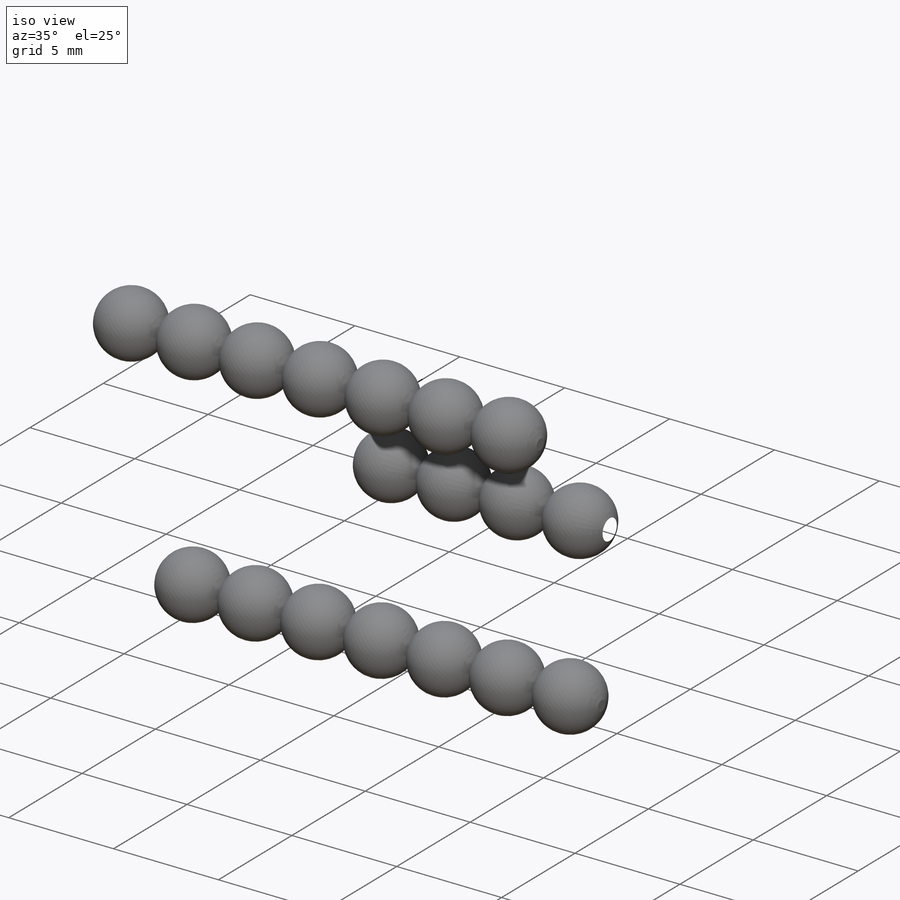
[diagram: iso view]
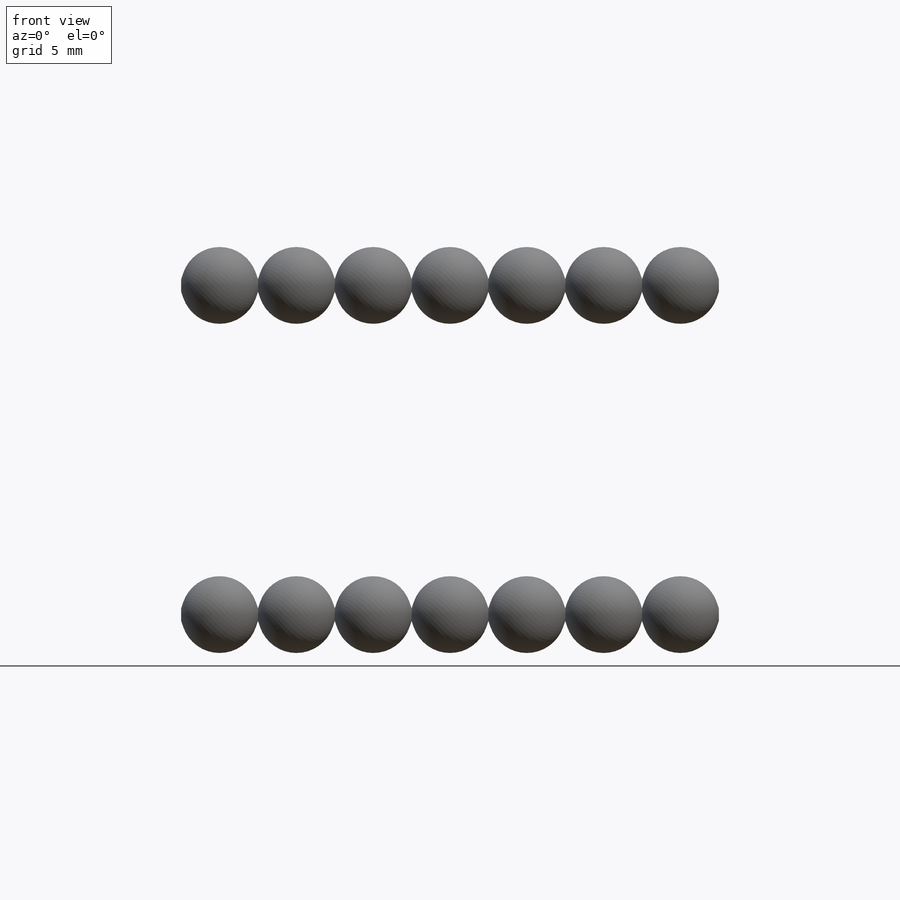
[diagram: front view]
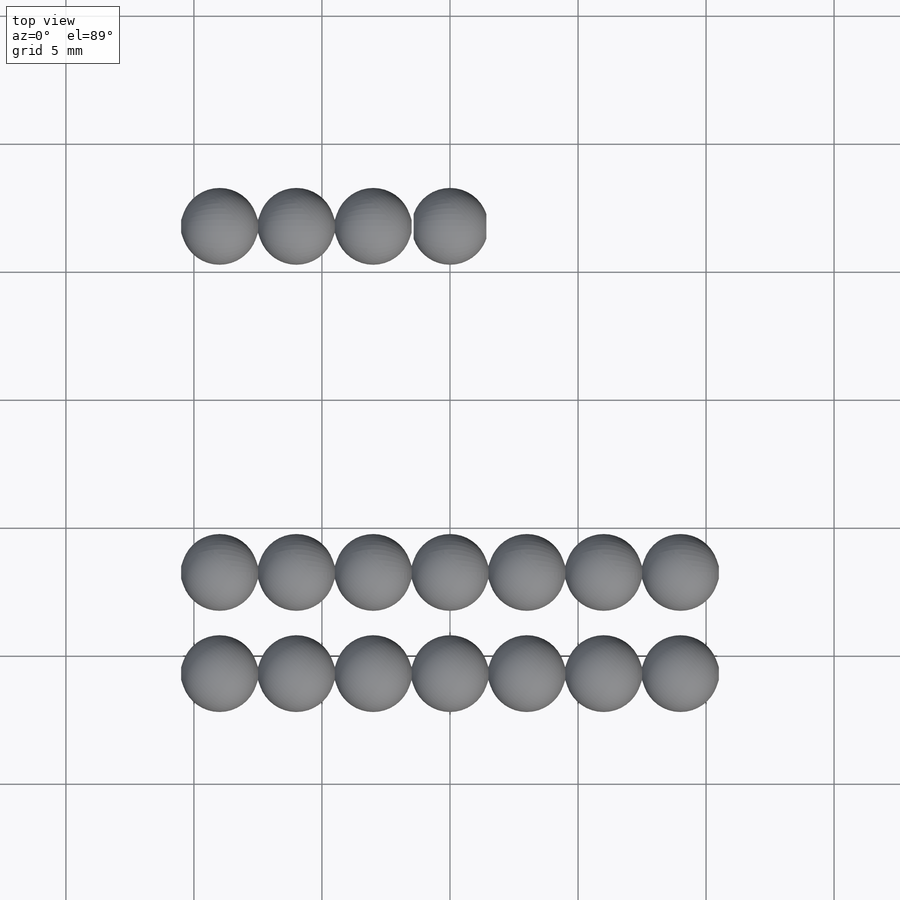
[diagram: top view]
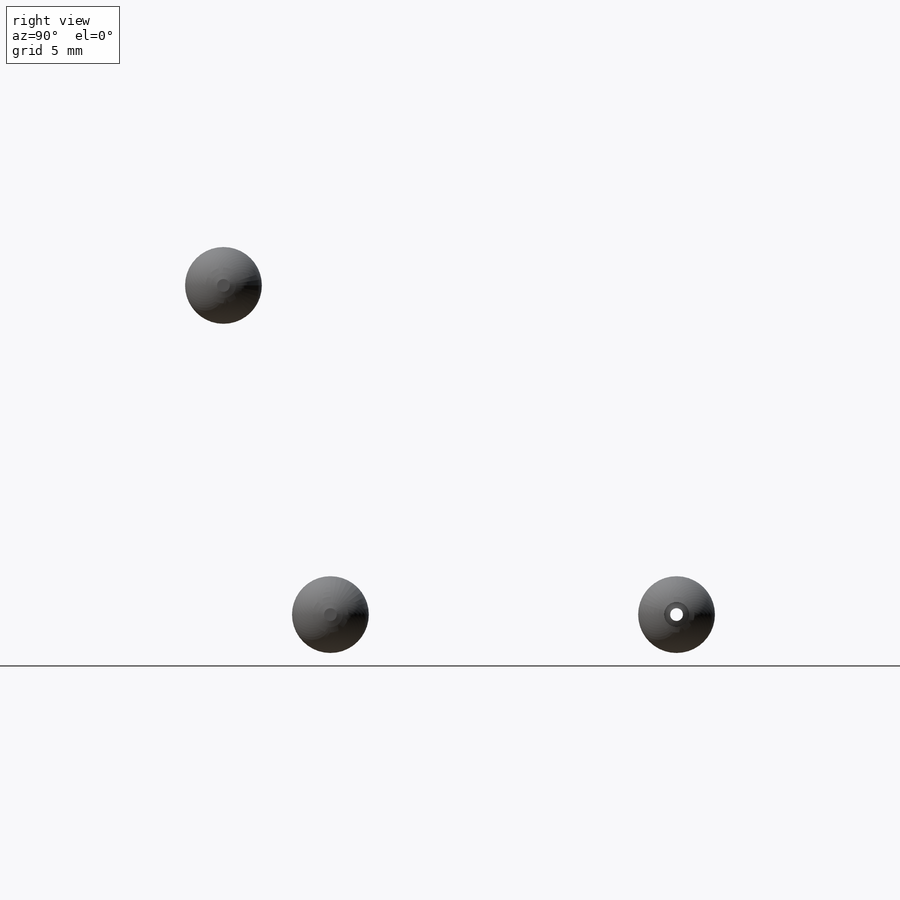
[diagram: right view]
SOLIDWORKS PART (.sldprt)
format: sldprt  version: not decoded by parser v0  size: 2,127,360 bytes
history: native  units: mm
features: sketch x5, material x4, revolve x3, pattern_circular x2, mirror x2, plane x1, pattern_linear x1, boolean_combine x1, cut_extrude x1 + 1 further entry (+10 scaffold rows collapsed)
feature tree (31):
  scaffold x10  (default folders/planes/origin — collapsed)
  material  "Материал <не указан>"
  material  "PTricksFreeParameters"
  material  "PTricksEqu"
  material  "PTricksFreeParameters"
  plane  "Спереди"
  "Начало координат"
  sketch  "Эскиз1"  dims[D7=3.0mm D1=80.0mm D2=32.0mm D3=1.6mm D4=61.0mm D5=30.5mm D6=20.0mm D8=9.5mm D9=9.5mm D10=21.0mm]
  sketch  "Эскиз2"  dims[D1=0.25mm]
  revolve  "Повернуть1"  Angle=360deg
  pattern_linear  "Линейный массив1"  Count1=7 Count2=1 Spacing1=3mm Spacing2=10mm
  boolean_combine  "Соединить2"
  pattern_circular  "Круговой массив1"  Count=5 Angle=360deg
  sketch  "Эскиз3"  dims[D4=0.75mm D5=1.5mm D1=0.75mm D2=0.75mm D3=1.0mm]
  revolve  "Повернуть2"  Angle=360deg
  sketch  "Эскиз4"  dims[D1=3.2mm D2=18.0mm]
  cut_extrude  "Вытянуть1"  [1 undecoded]
  pattern_circular  "Круговой массив2"  Count=5 Angle=360deg
  sketch  "Эскиз5"  dims[c1.D2=4.0mm c1.D3=1.5mm c2.D2=18.0mm c2.D1=0.5mm]
  revolve  "Повернуть3"  Angle=360deg
  mirror  "Зеркальное отражение4"
  mirror  "Зеркальное отражение5"
decode coverage: 11 of 15 modeling features carry decoded parameters; 1 rows unclassified (native names shown)
note: 1 parameter value undecoded
note: suppression state not decoded; provenance and decode notes live in map.json
